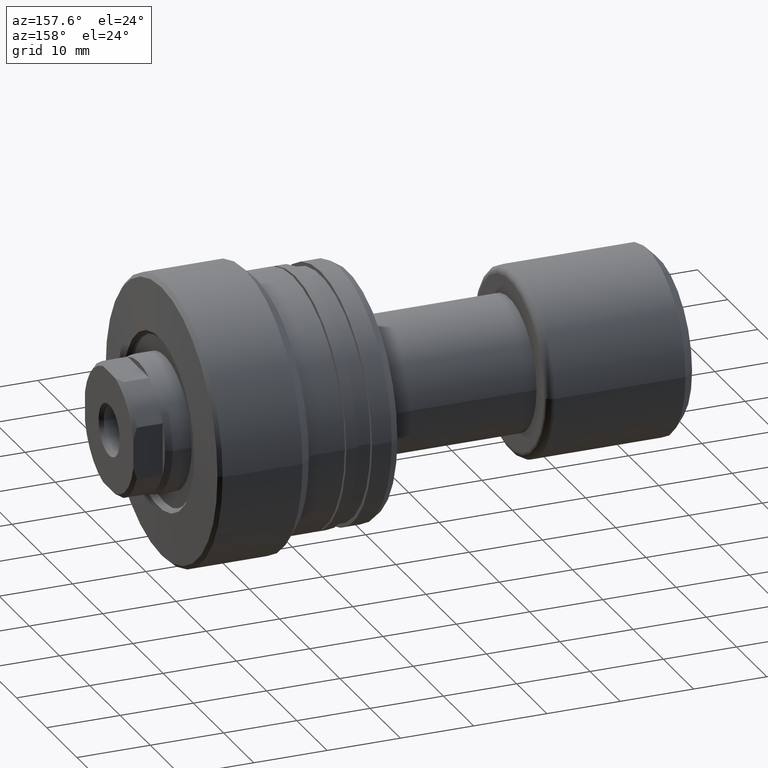
[diagram: clean part render]
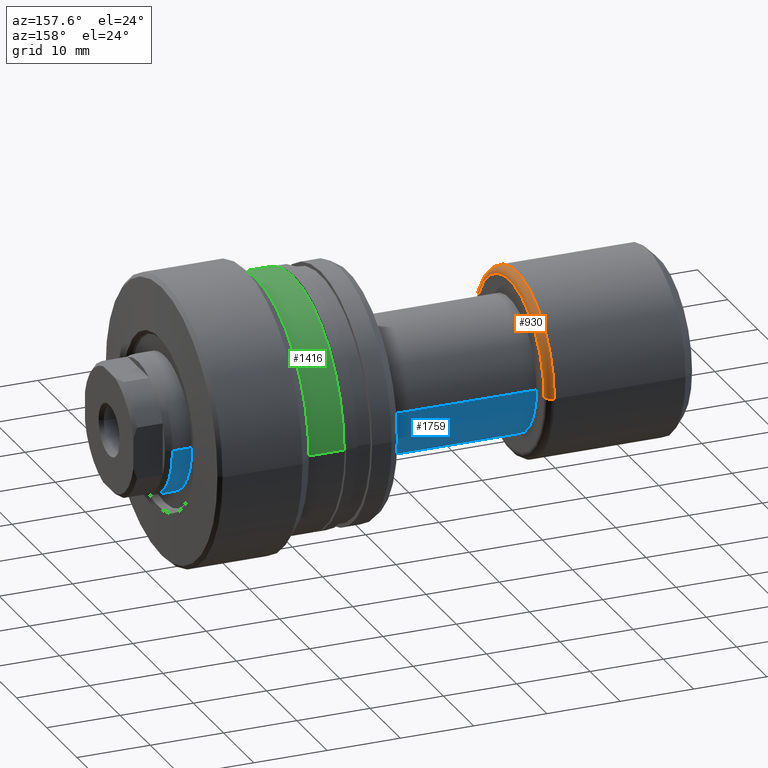
[diagram: same view with three faces highlighted in distinct colors, each labeled with its STEP entity id]
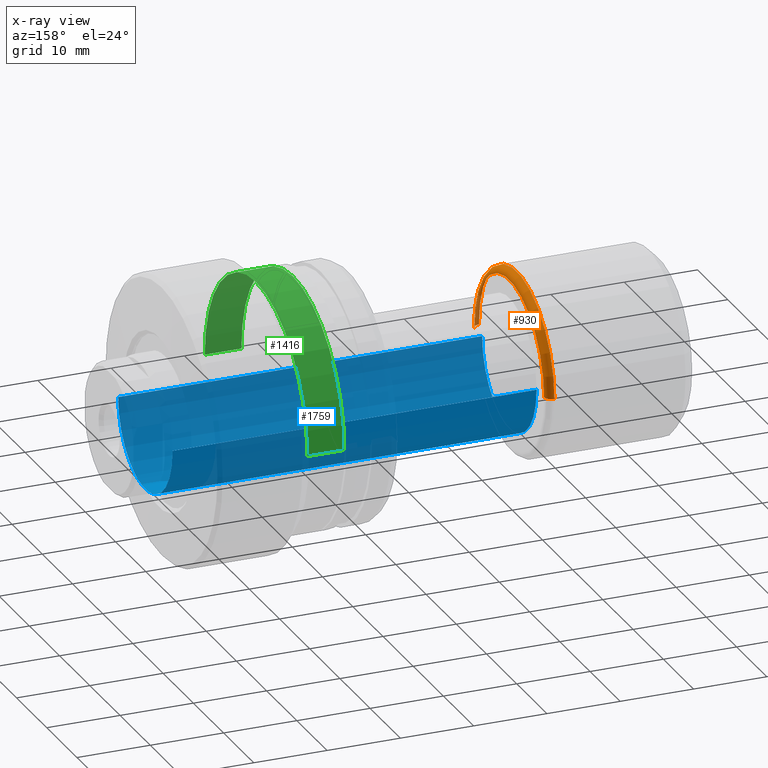
[diagram: x-ray of the same camera — body ghosted, the three highlighted faces saturated]
A machine part, auxiliary view with three faces highlighted in distinct colors.
The next image is the same camera in x-ray (body ghosted, the three faces saturated) — at least one of them is partly hidden behind the body in this view.
Their STEP definitions:

[orange] entity #930 — the highlighted toroidal blend (fillet) surface has major radius 11.5 mm and minor (blend) radius 1 mm.
#52 = CIRCLE ( 'NONE', #1242, 12.50000000000000000 ) ;
#63 = CARTESIAN_POINT ( 'NONE',  ( 20.39999999999999858, 11.50000000000000000, 1.469576158976823947E-15 ) ) ;
#102 = VERTEX_POINT ( 'NONE', #63 ) ;
#228 = EDGE_LOOP ( 'NONE', ( #2037, #696, #2119, #2416 ) ) ;
#312 = CARTESIAN_POINT ( 'NONE',  ( 19.39999999999999858, 0.000000000000000000, 0.000000000000000000 ) ) ;
#332 = DIRECTION ( 'NONE',  ( 0.000000000000000000, -1.000000000000000000, 0.000000000000000000 ) ) ;
#403 = CARTESIAN_POINT ( 'NONE',  ( 19.39999999999999858, -11.50000000000000000, 0.000000000000000000 ) ) ;
#405 = EDGE_CURVE ( 'NONE', #1923, #102, #2145, .T. ) ;
#519 = AXIS2_PLACEMENT_3D ( 'NONE', #1513, #942, #1531 ) ;
#564 = AXIS2_PLACEMENT_3D ( 'NONE', #312, #740, #2418 ) ;
#600 = CARTESIAN_POINT ( 'NONE',  ( 20.39999999999999858, -11.50000000000000000, 0.000000000000000000 ) ) ;
#607 = CIRCLE ( 'NONE', #1816, 1.000000000000000888 ) ;
#661 = CARTESIAN_POINT ( 'NONE',  ( 19.40000000000000213, 2.074912104813987675E-16, 0.000000000000000000 ) ) ;
#696 = ORIENTED_EDGE ( 'NONE', *, *, #990, .T. ) ;
#740 = DIRECTION ( 'NONE',  ( -1.000000000000000000, -1.069542322069065801E-17, -0.000000000000000000 ) ) ;
#918 = FACE_OUTER_BOUND ( 'NONE', #228, .T. ) ;
#930 = ADVANCED_FACE ( 'NONE', ( #918 ), #1740, .T. ) ;
#942 = DIRECTION ( 'NONE',  ( 1.309811581274509052E-33, -1.224646799147353207E-16, 1.000000000000000000 ) ) ;
#990 = EDGE_CURVE ( 'NONE', #102, #1046, #1268, .T. ) ;
#1046 = VERTEX_POINT ( 'NONE', #1726 ) ;
#1072 = CARTESIAN_POINT ( 'NONE',  ( 20.39999999999999858, 2.181866337020894116E-16, 0.000000000000000000 ) ) ;
#1147 = EDGE_CURVE ( 'NONE', #1923, #1231, #607, .T. ) ;
#1158 = DIRECTION ( 'NONE',  ( 0.000000000000000000, 0.000000000000000000, -1.000000000000000000 ) ) ;
#1216 = DIRECTION ( 'NONE',  ( -1.000000000000000000, -1.069542322069065801E-17, -0.000000000000000000 ) ) ;
#1231 = VERTEX_POINT ( 'NONE', #2163 ) ;
#1242 = AXIS2_PLACEMENT_3D ( 'NONE', #661, #1216, #1954 ) ;
#1268 = CIRCLE ( 'NONE', #519, 1.000000000000000888 ) ;
#1513 = CARTESIAN_POINT ( 'NONE',  ( 19.39999999999999858, 11.50000000000000000, 1.408343819019456176E-15 ) ) ;
#1531 = DIRECTION ( 'NONE',  ( 0.000000000000000000, -1.000000000000000000, -1.224646799147353454E-16 ) ) ;
#1546 = DIRECTION ( 'NONE',  ( -1.000000000000000000, 0.000000000000000000, 0.000000000000000000 ) ) ;
#1726 = CARTESIAN_POINT ( 'NONE',  ( 19.40000000000000213, 12.50000000000000000, 1.530808498934191521E-15 ) ) ;
#1740 = TOROIDAL_SURFACE ( 'NONE', #564, 11.50000000000000000, 1.000000000000000888 ) ;
#1816 = AXIS2_PLACEMENT_3D ( 'NONE', #403, #1158, #1546 ) ;
#1896 = AXIS2_PLACEMENT_3D ( 'NONE', #1072, #2235, #332 ) ;
#1923 = VERTEX_POINT ( 'NONE', #600 ) ;
#1954 = DIRECTION ( 'NONE',  ( 0.000000000000000000, -1.000000000000000000, 0.000000000000000000 ) ) ;
#2037 = ORIENTED_EDGE ( 'NONE', *, *, #405, .T. ) ;
#2119 = ORIENTED_EDGE ( 'NONE', *, *, #2193, .F. ) ;
#2145 = CIRCLE ( 'NONE', #1896, 11.50000000000000000 ) ;
#2163 = CARTESIAN_POINT ( 'NONE',  ( 19.40000000000000213, -12.50000000000000000, 0.000000000000000000 ) ) ;
#2193 = EDGE_CURVE ( 'NONE', #1231, #1046, #52, .T. ) ;
#2235 = DIRECTION ( 'NONE',  ( -1.000000000000000000, -1.069542322069065801E-17, -0.000000000000000000 ) ) ;
#2416 = ORIENTED_EDGE ( 'NONE', *, *, #1147, .F. ) ;
#2418 = DIRECTION ( 'NONE',  ( 1.069542322069065955E-17, -1.000000000000000000, 0.000000000000000000 ) ) ;

[blue] entity #1759 — the highlighted cylindrical surface (partial cylindrical patch) has radius 9 mm, axis along (-1, -0, -0).
#10 = EDGE_CURVE ( 'NONE', #1588, #318, #1054, .T. ) ;
#47 = AXIS2_PLACEMENT_3D ( 'NONE', #2428, #748, #1510 ) ;
#236 = DIRECTION ( 'NONE',  ( -1.000000000000000000, -1.069542322069065801E-17, -0.000000000000000000 ) ) ;
#259 = CARTESIAN_POINT ( 'NONE',  ( -9.625880898621694358E-17, 9.000000000000094147, 1.102182119232629547E-15 ) ) ;
#318 = VERTEX_POINT ( 'NONE', #1081 ) ;
#372 = VECTOR ( 'NONE', #636, 1000.000000000000000 ) ;
#472 = CYLINDRICAL_SURFACE ( 'NONE', #2144, 9.000000000000094147 ) ;
#491 = VERTEX_POINT ( 'NONE', #2385 ) ;
#636 = DIRECTION ( 'NONE',  ( -1.000000000000000000, -1.069542322069065801E-17, -0.000000000000000000 ) ) ;
#682 = CIRCLE ( 'NONE', #997, 9.000000000000000000 ) ;
#748 = DIRECTION ( 'NONE',  ( -1.000000000000000000, -1.069542322069065801E-17, -0.000000000000000000 ) ) ;
#757 = ORIENTED_EDGE ( 'NONE', *, *, #1614, .T. ) ;
#855 = DIRECTION ( 'NONE',  ( 0.000000000000000000, -1.000000000000000000, 0.000000000000000000 ) ) ;
#997 = AXIS2_PLACEMENT_3D ( 'NONE', #1776, #236, #855 ) ;
#1044 = DIRECTION ( 'NONE',  ( -1.000000000000000000, -1.069542322069065801E-17, -0.000000000000000000 ) ) ;
#1054 = LINE ( 'NONE', #2341, #2099 ) ;
#1081 = CARTESIAN_POINT ( 'NONE',  ( 20.39999999999999858, -9.000000000000000000, 0.000000000000000000 ) ) ;
#1211 = EDGE_CURVE ( 'NONE', #491, #318, #682, .T. ) ;
#1378 = DIRECTION ( 'NONE',  ( 1.069542322069065955E-17, -1.000000000000000000, 0.000000000000000000 ) ) ;
#1424 = FACE_OUTER_BOUND ( 'NONE', #2128, .T. ) ;
#1454 = DIRECTION ( 'NONE',  ( -1.000000000000000000, -1.069542322069065801E-17, -0.000000000000000000 ) ) ;
#1510 = DIRECTION ( 'NONE',  ( 0.000000000000000000, -1.000000000000000000, 0.000000000000000000 ) ) ;
#1588 = VERTEX_POINT ( 'NONE', #1920 ) ;
#1614 = EDGE_CURVE ( 'NONE', #1702, #1588, #2098, .T. ) ;
#1702 = VERTEX_POINT ( 'NONE', #1742 ) ;
#1742 = CARTESIAN_POINT ( 'NONE',  ( 70.06675751232378957, 9.000000000000190070, 1.102182119232641183E-15 ) ) ;
#1759 = ADVANCED_FACE ( 'NONE', ( #1424 ), #472, .T. ) ;
#1776 = CARTESIAN_POINT ( 'NONE',  ( 20.39999999999999858, 2.181866337020894116E-16, 0.000000000000000000 ) ) ;
#1789 = ORIENTED_EDGE ( 'NONE', *, *, #10, .T. ) ;
#1920 = CARTESIAN_POINT ( 'NONE',  ( 70.06675751232378957, -9.000000000000190070, 0.000000000000000000 ) ) ;
#1973 = CARTESIAN_POINT ( 'NONE',  ( 0.000000000000000000, 0.000000000000000000, 0.000000000000000000 ) ) ;
#2045 = ORIENTED_EDGE ( 'NONE', *, *, #1211, .F. ) ;
#2098 = CIRCLE ( 'NONE', #47, 9.000000000000190070 ) ;
#2099 = VECTOR ( 'NONE', #1454, 1000.000000000000000 ) ;
#2128 = EDGE_LOOP ( 'NONE', ( #2389, #757, #1789, #2045 ) ) ;
#2144 = AXIS2_PLACEMENT_3D ( 'NONE', #1973, #1044, #1378 ) ;
#2180 = EDGE_CURVE ( 'NONE', #1702, #491, #2313, .T. ) ;
#2313 = LINE ( 'NONE', #259, #372 ) ;
#2341 = CARTESIAN_POINT ( 'NONE',  ( 9.625880898621694358E-17, -9.000000000000094147, 0.000000000000000000 ) ) ;
#2385 = CARTESIAN_POINT ( 'NONE',  ( 20.39999999999999858, 9.000000000000000000, 1.102182119232623630E-15 ) ) ;
#2389 = ORIENTED_EDGE ( 'NONE', *, *, #2180, .F. ) ;
#2428 = CARTESIAN_POINT ( 'NONE',  ( 70.06675751232378957, 7.493936252958094024E-16, 0.000000000000000000 ) ) ;

[green] entity #1416 — the highlighted cylindrical surface (partial cylindrical patch) has radius 17 mm, axis along (-1, 0, 0).
#114 = CARTESIAN_POINT ( 'NONE',  ( -30.28002276692734185, -16.99999999999998934, 0.000000000000000000 ) ) ;
#138 = DIRECTION ( 'NONE',  ( -1.020425574104004788E-15, -1.000000000000000000, 0.000000000000000000 ) ) ;
#163 = VECTOR ( 'NONE', #1833, 1000.000000000000000 ) ;
#168 = ORIENTED_EDGE ( 'NONE', *, *, #295, .F. ) ;
#295 = EDGE_CURVE ( 'NONE', #1849, #793, #915, .T. ) ;
#442 = DIRECTION ( 'NONE',  ( -1.000000000000000000, 9.810081908519753690E-16, -0.000000000000000000 ) ) ;
#484 = AXIS2_PLACEMENT_3D ( 'NONE', #1812, #442, #2317 ) ;
#621 = LINE ( 'NONE', #2433, #645 ) ;
#645 = VECTOR ( 'NONE', #749, 1000.000000000000000 ) ;
#674 = CARTESIAN_POINT ( 'NONE',  ( -13.99999999999999822, -17.00000000000000355, 0.000000000000000000 ) ) ;
#719 = CARTESIAN_POINT ( 'NONE',  ( -19.00000000000000000, -17.00000000000000355, 0.000000000000000000 ) ) ;
#728 = AXIS2_PLACEMENT_3D ( 'NONE', #1102, #2216, #2170 ) ;
#735 = DIRECTION ( 'NONE',  ( -1.000000000000000000, 9.810081908519753690E-16, -0.000000000000000000 ) ) ;
#749 = DIRECTION ( 'NONE',  ( -1.000000000000000000, 9.810081908519753690E-16, -0.000000000000000000 ) ) ;
#793 = VERTEX_POINT ( 'NONE', #1608 ) ;
#843 = AXIS2_PLACEMENT_3D ( 'NONE', #1066, #735, #138 ) ;
#915 = CIRCLE ( 'NONE', #484, 16.99999999999999289 ) ;
#1042 = EDGE_CURVE ( 'NONE', #1545, #793, #621, .T. ) ;
#1059 = ORIENTED_EDGE ( 'NONE', *, *, #1771, .F. ) ;
#1063 = LINE ( 'NONE', #114, #163 ) ;
#1066 = CARTESIAN_POINT ( 'NONE',  ( -30.28002276692732408, 0.000000000000000000, 0.000000000000000000 ) ) ;
#1102 = CARTESIAN_POINT ( 'NONE',  ( -13.99999999999998046, -1.597083568161236364E-14, 0.000000000000000000 ) ) ;
#1210 = VERTEX_POINT ( 'NONE', #674 ) ;
#1416 = ADVANCED_FACE ( 'NONE', ( #2002 ), #1800, .T. ) ;
#1427 = ORIENTED_EDGE ( 'NONE', *, *, #1042, .T. ) ;
#1545 = VERTEX_POINT ( 'NONE', #2085 ) ;
#1608 = CARTESIAN_POINT ( 'NONE',  ( -18.99999999999996447, 16.99999999999998224, 2.081899558550499885E-15 ) ) ;
#1771 = EDGE_CURVE ( 'NONE', #1210, #1849, #1063, .T. ) ;
#1800 = CYLINDRICAL_SURFACE ( 'NONE', #843, 16.99999999999998934 ) ;
#1812 = CARTESIAN_POINT ( 'NONE',  ( -18.99999999999998224, -1.106579472735248521E-14, 0.000000000000000000 ) ) ;
#1833 = DIRECTION ( 'NONE',  ( -1.000000000000000000, 9.810081908519753690E-16, -0.000000000000000000 ) ) ;
#1849 = VERTEX_POINT ( 'NONE', #719 ) ;
#1869 = EDGE_CURVE ( 'NONE', #1210, #1545, #2102, .T. ) ;
#2002 = FACE_OUTER_BOUND ( 'NONE', #2305, .T. ) ;
#2085 = CARTESIAN_POINT ( 'NONE',  ( -13.99999999999996447, 16.99999999999997158, 2.081899558550499096E-15 ) ) ;
#2102 = CIRCLE ( 'NONE', #728, 16.99999999999998579 ) ;
#2131 = ORIENTED_EDGE ( 'NONE', *, *, #1869, .T. ) ;
#2170 = DIRECTION ( 'NONE',  ( -1.020425574104004985E-15, -1.000000000000000000, 0.000000000000000000 ) ) ;
#2216 = DIRECTION ( 'NONE',  ( -1.000000000000000000, 9.810081908519753690E-16, -0.000000000000000000 ) ) ;
#2305 = EDGE_LOOP ( 'NONE', ( #2131, #1427, #168, #1059 ) ) ;
#2317 = DIRECTION ( 'NONE',  ( -1.020425574104004591E-15, -1.000000000000000000, 0.000000000000000000 ) ) ;
#2433 = CARTESIAN_POINT ( 'NONE',  ( -30.28002276692730632, 16.99999999999998934, 2.081899558550499491E-15 ) ) ;